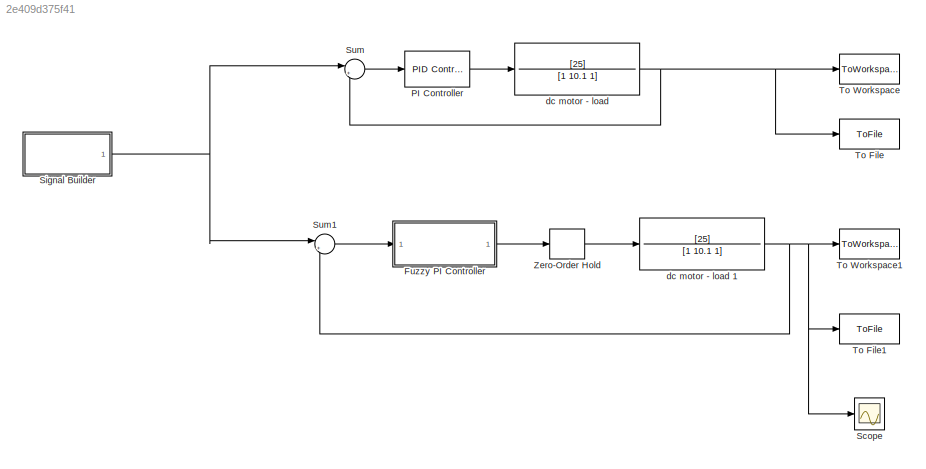
MODEL slx_2e409d375f41
KIND model
CONFIG AbsTol = auto
CONFIG EnableMultiTasking = off
CONFIG FixedStep = auto
CONFIG MaxStep = auto
CONFIG MinStep = auto
CONFIG RelTol = 1e-3
CONFIG SampleTimeConstraint = Unconstrained
CONFIG Solver = VariableStepAuto
CONFIG SolverName = VariableStepAuto
CONFIG StartTime = 0.0
CONFIG StopTime = 10.0
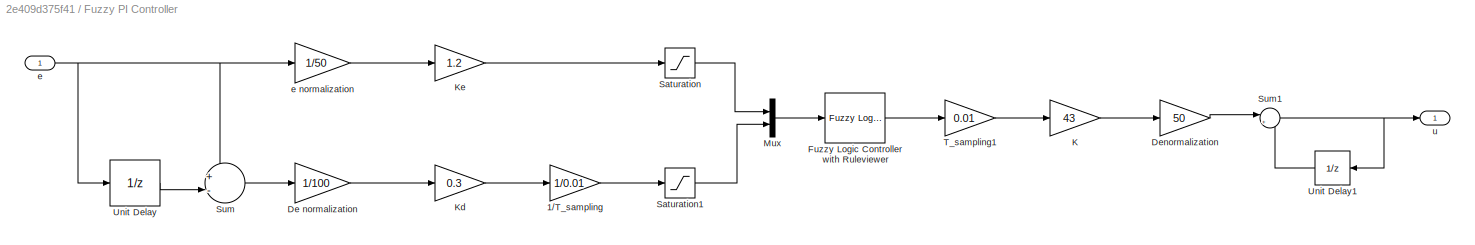
BLOCK [SubSystem] Fuzzy PI Controller
  Ports = [1, 1]
  RequestExecContextInheritance = off
BLOCK [Gain] Fuzzy PI Controller/1//T_sampling
  Gain = 1/0.01
  OutDataTypeStr = Inherit: Inherit via internal rule
  ParamDataTypeStr = Inherit: Inherit via internal rule
  SaturateOnIntegerOverflow = off
BLOCK [Gain] Fuzzy PI Controller/De normalization
  Gain = 1/100
  OutDataTypeStr = Inherit: Inherit via internal rule
  ParamDataTypeStr = Inherit: Inherit via internal rule
  SaturateOnIntegerOverflow = off
BLOCK [Gain] Fuzzy PI Controller/Denormalization
  Gain = 50
  OutDataTypeStr = Inherit: Inherit via internal rule
  ParamDataTypeStr = Inherit: Inherit via internal rule
  SaturateOnIntegerOverflow = off
BLOCK [Reference] Fuzzy PI Controller/Fuzzy Logic Controller with Ruleviewer  REF=fuzblock/Fuzzy Logic   (lib defined in mdl_858b3b3e7478)
Controller 
with Ruleviewer
  Ports = [1, 1]
  SourceBlock = fuzblock/Fuzzy Logic \nController \nwith Ruleviewer
  SourceProductBaseCode = FL
  SourceProductName = Fuzzy Logic Toolbox
  SourceType = Fuzzy Inference System
BLOCK [Gain] Fuzzy PI Controller/Kd
  Gain = 0.3
  OutDataTypeStr = Inherit: Inherit via internal rule
  ParamDataTypeStr = Inherit: Inherit via internal rule
  SaturateOnIntegerOverflow = off
BLOCK [Gain] Fuzzy PI Controller/Ke
  Gain = 1.2
  OutDataTypeStr = Inherit: Inherit via internal rule
  ParamDataTypeStr = Inherit: Inherit via internal rule
  SaturateOnIntegerOverflow = off
BLOCK [Mux] Fuzzy PI Controller/Mux
  DisplayOption = bar
  Inputs = 2
  Ports = [2, 1]
BLOCK [Saturate] Fuzzy PI Controller/Saturation
  InputPortMap = u0
  LowerLimit = -1
  Ports = [1, 1]
  UpperLimit = 1
BLOCK [Saturate] Fuzzy PI Controller/Saturation1
  InputPortMap = u0
  LowerLimit = -1
  Ports = [1, 1]
  UpperLimit = 1
BLOCK [Sum] Fuzzy PI Controller/Sum
  IconShape = round
  InputSameDT = off
  Inputs = +-|
  OutDataTypeStr = Inherit: Inherit via internal rule
  Ports = [2, 1]
  SaturateOnIntegerOverflow = off
BLOCK [Sum] Fuzzy PI Controller/Sum1
  IconShape = round
  InputSameDT = off
  Inputs = |++
  OutDataTypeStr = Inherit: Inherit via internal rule
  Ports = [2, 1]
  SaturateOnIntegerOverflow = off
BLOCK [Gain] Fuzzy PI Controller/T_sampling1
  Gain = 0.01
  OutDataTypeStr = Inherit: Inherit via internal rule
  ParamDataTypeStr = Inherit: Inherit via internal rule
  SaturateOnIntegerOverflow = off
BLOCK [UnitDelay] Fuzzy PI Controller/Unit Delay
  InputProcessing = Elements as channels (sample based)
  SampleTime = -1
BLOCK [UnitDelay] Fuzzy PI Controller/Unit Delay1
  InputProcessing = Elements as channels (sample based)
  SampleTime = -1
BLOCK [Inport] Fuzzy PI Controller/e
  IconDisplay = Port number
BLOCK [Gain] Fuzzy PI Controller/e normalization
  Gain = 1/50
  OutDataTypeStr = Inherit: Inherit via internal rule
  ParamDataTypeStr = Inherit: Inherit via internal rule
  SaturateOnIntegerOverflow = off
BLOCK [Outport] Fuzzy PI Controller/u
  IconDisplay = Port number
BLOCK [Gain] Fuzzy PI Controller/Κ
  Gain = 43
  OutDataTypeStr = Inherit: Inherit via internal rule
  ParamDataTypeStr = Inherit: Inherit via internal rule
  SaturateOnIntegerOverflow = off
BLOCK [Reference] PI Controller  REF=simulink/Continuous/PID Controller
  Ports = [1, 1]
  SourceBlock = simulink/Continuous/PID Controller
  SourceProductBaseCode = SL
  SourceProductName = Simulink
  SourceType = PID 1dof
BLOCK [Scope] Scope
  Floating = off
  NumInputPorts = 1
  Ports = [1]
  ScopeSpecificationString = Simulink.scopes.TimeScopeBlockCfg('CurrentConfiguration', extmgr.ConfigurationSet(extmgr.Configuration('Core','General UI',true),extmgr.Configuration('Core','Source UI',true),extmgr.Configuration('Sources','WiredSimulink',true),extmgr.Configuration('Visuals','Time Domain',true,'SerializedDisplays',{struct('MinYLimReal','-6.42945','MaxYLimReal','57.86505','YLabelReal','','MinYLimMag','0.00000','Max...<+1371ch>
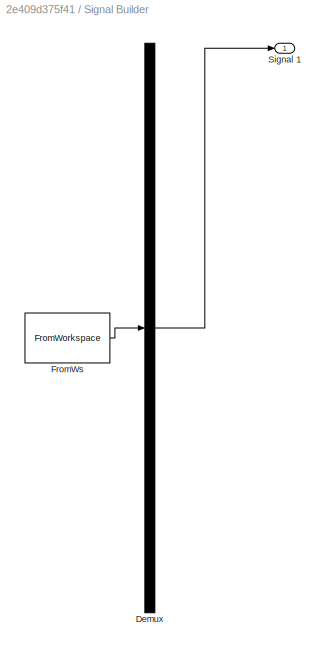
BLOCK [SubSystem] Signal Builder
  ClipboardFcn = sigbuilder_block('clipboard');
  CloseFcn = sigbuilder_block('close');
  ContinueFcn = sigbuilder_block('continue');
  CopyFcn = sigbuilder_block('copy');
  DeleteFcn = sigbuilder_block('delete');
  LoadFcn = sigbuilder_block('load');
  MaskHideContents = on
  ModelCloseFcn = sigbuilder_block('modelClose');
  NameChangeFcn = sigbuilder_block('namechange');
  OpenFcn = sigbuilder_block('open',[0 30 1440 722.25 ]);
  PauseFcn = sigbuilder_block('pause');
  Ports = [0, 1]
  PreSaveFcn = sigbuilder_block('preSave');
  RequestExecContextInheritance = off
  StartFcn = sigbuilder_block('start');
  StopFcn = sigbuilder_block('stop');
  Tag = STV Subsys
BLOCK [Demux] Signal Builder/Demux
  Outputs = 1
  Ports = [1, 1]
  Tag = STV Demux
BLOCK [FromWorkspace] Signal Builder/FromWs
  SampleTime = 0
  Tag = STV FromWs
  VariableName = tuvar
  ZeroCross = on
BLOCK [Outport] Signal Builder/Signal 1
  IconDisplay = Port number
  Tag = STV Outport
BLOCK [Sum] Sum
  IconShape = round
  InputSameDT = off
  Inputs = |+-
  OutDataTypeStr = Inherit: Inherit via internal rule
  Ports = [2, 1]
  SaturateOnIntegerOverflow = off
BLOCK [Sum] Sum1
  IconShape = round
  InputSameDT = off
  Inputs = |+-
  OutDataTypeStr = Inherit: Inherit via internal rule
  Ports = [2, 1]
  SaturateOnIntegerOverflow = off
BLOCK [ToFile] To File
  Filename = pi_resp.mat
  MatrixName = resp
  Ports = [1]
  SaveFormat = Timeseries
BLOCK [ToFile] To File1
  Filename = fz_pi_resp_tuned.mat
  MatrixName = resp
  Ports = [1]
  SaveFormat = Timeseries
BLOCK [ToWorkspace] To Workspace
  FixptAsFi = on
  MaxDataPoints = inf
  Ports = [1]
  SampleTime = -1
  Save2DSignal = 3-D array (concatenate along third dimension)
  SaveFormat = Timeseries
  VariableName = out
BLOCK [ToWorkspace] To Workspace1
  FixptAsFi = on
  MaxDataPoints = inf
  Ports = [1]
  SampleTime = -1
  Save2DSignal = 3-D array (concatenate along third dimension)
  SaveFormat = Timeseries
  VariableName = out1
BLOCK [ZeroOrderHold] Zero-Order Hold
  SampleTime = -1
BLOCK [TransferFcn] dc motor - load 
  AttributesFormatString = %<RequirementInfo>
  Denominator = [1 10.1 1]
  Numerator = [25]
  Tag = sadsd
BLOCK [TransferFcn] dc motor - load 1
  AttributesFormatString = %<RequirementInfo>
  Denominator = [1 10.1 1]
  Numerator = [25]
  Tag = sadsd
LINE Fuzzy PI Controller/1//T_sampling:1 -> Fuzzy PI Controller/Saturation1:1
LINE Fuzzy PI Controller/De normalization:1 -> Fuzzy PI Controller/Kd:1
LINE Fuzzy PI Controller/Denormalization:1 -> Fuzzy PI Controller/Sum1:1
LINE Fuzzy PI Controller/Fuzzy Logic Controller with Ruleviewer:1 -> Fuzzy PI Controller/T_sampling1:1
LINE Fuzzy PI Controller/Kd:1 -> Fuzzy PI Controller/1//T_sampling:1
LINE Fuzzy PI Controller/Ke:1 -> Fuzzy PI Controller/Saturation:1
LINE Fuzzy PI Controller/Mux:1 -> Fuzzy PI Controller/Fuzzy Logic Controller with Ruleviewer:1
LINE Fuzzy PI Controller/Saturation1:1 -> Fuzzy PI Controller/Mux:2
LINE Fuzzy PI Controller/Saturation:1 -> Fuzzy PI Controller/Mux:1
NET Fuzzy PI Controller/Sum1:1 -> Fuzzy PI Controller/Unit Delay1:1, Fuzzy PI Controller/u:1
LINE Fuzzy PI Controller/Sum:1 -> Fuzzy PI Controller/De normalization:1
LINE Fuzzy PI Controller/T_sampling1:1 -> Fuzzy PI Controller/Κ:1
LINE Fuzzy PI Controller/Unit Delay1:1 -> Fuzzy PI Controller/Sum1:2
LINE Fuzzy PI Controller/Unit Delay:1 -> Fuzzy PI Controller/Sum:2
LINE Fuzzy PI Controller/e normalization:1 -> Fuzzy PI Controller/Ke:1
NET Fuzzy PI Controller/e:1 -> Fuzzy PI Controller/Sum:1, Fuzzy PI Controller/Unit Delay:1, Fuzzy PI Controller/e normalization:1
LINE Fuzzy PI Controller/Κ:1 -> Fuzzy PI Controller/Denormalization:1
LINE Fuzzy PI Controller:1 -> Zero-Order Hold:1
LINE PI Controller:1 -> dc motor - load :1
NET Signal Builder:1 -> Sum1:1, Sum:1
LINE Sum1:1 -> Fuzzy PI Controller:1
LINE Sum:1 -> PI Controller:1
LINE Zero-Order Hold:1 -> dc motor - load 1:1
NET dc motor - load 1:1 -> Scope:1, Sum1:2, To File1:1, To Workspace1:1
NET dc motor - load :1 -> Sum:2, To File:1, To Workspace:1
note: NET lines group one-source signal fan-out (src -> all destinations, sorted); 1:1 wires keep LINE
